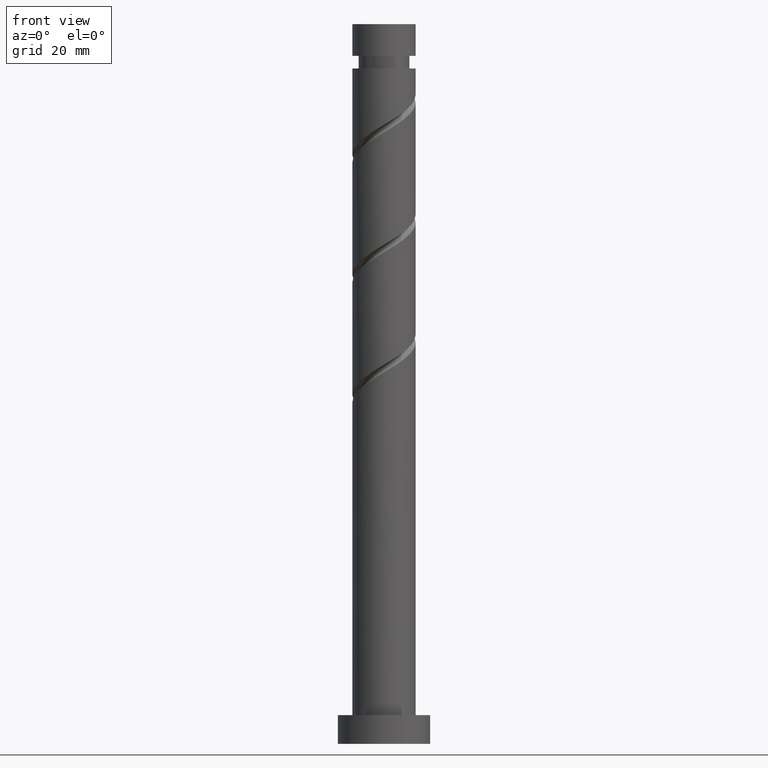
[diagram: clean part render]
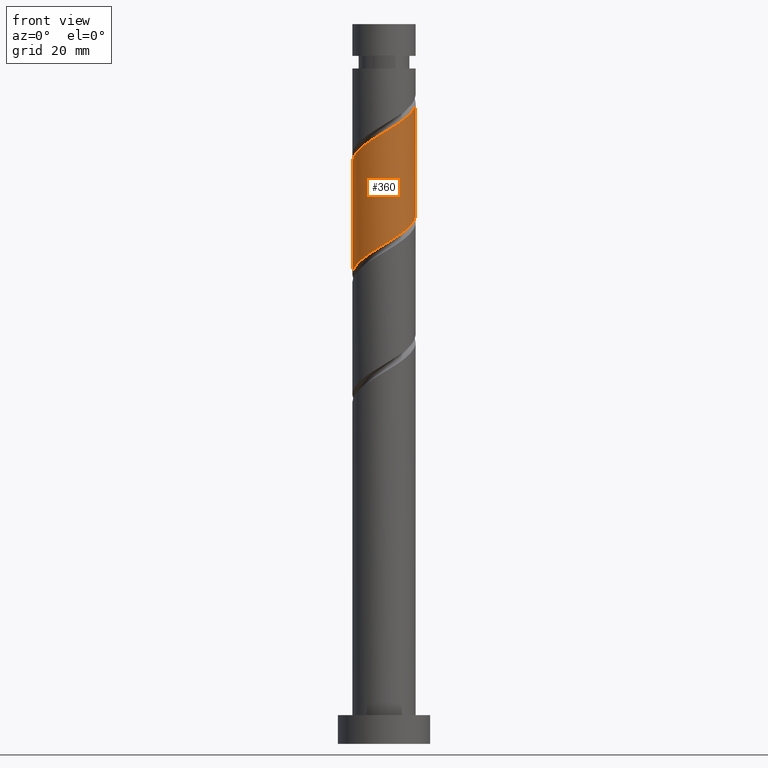
[diagram: same view with one face highlighted and labeled with its STEP entity id]
A machine part, front view. The second image highlights one B-rep face of the part: STEP entity #360.
In plain terms, the highlighted cylindrical surface (edge-blend (fillet) strip) has radius 5.5 mm, axis along (-0, -0, -1).
Its self-contained STEP definition (entity closure, byte-faithful):
#55 = LINE ( 'NONE', #297, #406 ) ;
#57 = ORIENTED_EDGE ( 'NONE', *, *, #204, .T. ) ;
#109 = CARTESIAN_POINT ( 'NONE',  ( 0.6246833854196917057, -5.464409452811948675, 87.07928583175919357 ) ) ;
#124 = CARTESIAN_POINT ( 'NONE',  ( -4.642379546774340504, -3.075248360626010591, 83.43345249842585076 ) ) ;
#131 = CARTESIAN_POINT ( 'NONE',  ( -1.094486180817284771, -5.389999999999999680, 86.03761916509255059 ) ) ;
#197 = CARTESIAN_POINT ( 'NONE',  ( -5.499999999999999112, -6.686923841309808376E-15, 81.49408827322945115 ) ) ;
#204 = EDGE_CURVE ( 'NONE', #611, #1142, #55, .T. ) ;
#205 = CARTESIAN_POINT ( 'NONE',  ( -3.075248360626016364, -4.642379546774346721, 104.2667858317591651 ) ) ;
#206 = CARTESIAN_POINT ( 'NONE',  ( 5.499999999999998224, 6.057213524415163597E-15, 91.91075493989612255 ) ) ;
#223 = CARTESIAN_POINT ( 'NONE',  ( -0.6246833854196944813, -5.464409452811954893, 105.8292858317591794 ) ) ;
#226 = ORIENTED_EDGE ( 'NONE', *, *, #1302, .F. ) ;
#230 = CARTESIAN_POINT ( 'NONE',  ( 5.389999999999999680, -1.094486180817284993, 91.24595249842587918 ) ) ;
#231 = CARTESIAN_POINT ( 'NONE',  ( 5.464409452811954893, -0.6246833854196948144, 111.0376191650925080 ) ) ;
#244 = CARTESIAN_POINT ( 'NONE',  ( 5.499999999999999112, -0.5527707983925728152, 91.57645036448828080 ) ) ;
#273 = DIRECTION ( 'NONE',  ( -0.000000000000000000, -0.000000000000000000, -1.000000000000000000 ) ) ;
#289 = CARTESIAN_POINT ( 'NONE',  ( 5.499999999999998224, 6.057213524415163597E-15, 91.91075493989612255 ) ) ;
#291 = VERTEX_POINT ( 'NONE', #289 ) ;
#297 = CARTESIAN_POINT ( 'NONE',  ( -5.500000000000000000, 0.000000000000000000, 125.0000000000000000 ) ) ;
#329 = CARTESIAN_POINT ( 'NONE',  ( 5.003924435603282816, -2.282704589466718836, 109.9959524984258223 ) ) ;
#360 = ADVANCED_FACE ( 'NONE', ( #1562 ), #1191, .T. ) ;
#367 = CARTESIAN_POINT ( 'NONE',  ( 5.216650418808310263, -1.948178314166534753, 90.72511916509252217 ) ) ;
#386 =( BOUNDED_CURVE ( )  B_SPLINE_CURVE ( 2, ( #206, #244, #230, #367, #672, #470, #1315, #702, #601, #1167, #109, #847, #131, #963, #954, #1065, #549, #124, #1211, #1559, #1093, #1083, #197 ),
 .UNSPECIFIED., .F., .T. ) 
 B_SPLINE_CURVE_WITH_KNOTS ( ( 3, 2, 2, 2, 2, 2, 2, 2, 2, 2, 2, 3 ),
 ( 0.5545322023138552492, 0.5625000000000000000, 0.5749999999999999556, 0.5875000000000000222, 0.5999999999999999778, 0.6125000000000000444, 0.6250000000000000000, 0.6374999999999999556, 0.6500000000000000222, 0.6624999999999999778, 0.6750000000000000444, 0.6795322023138552492 ),
 .UNSPECIFIED. ) 
 CURVE ( )  GEOMETRIC_REPRESENTATION_ITEM ( )  RATIONAL_B_SPLINE_CURVE ( ( 0.9039174447099320719, 0.9019565955404615920, 0.9090909090909098378, 0.8978984914501261239, 0.9090909090909098378, 0.8978984914501261239, 0.9090909090909098378, 0.8978984914501261239, 0.9090909090909098378, 0.8978984914501261239, 0.9090909090909098378, 0.8978984914501261239, 0.9090909090909098378, 0.8978984914501261239, 0.9090909090909098378, 0.8978984914501261239, 0.9090909090909098378, 0.8978984914501261239, 0.9090909090909098378, 0.8978984914501261239, 0.9090909090909098378, 0.9050328050005742586, 0.9039174447099320719 ) ) 
 REPRESENTATION_ITEM ( '' )  );
#388 = LINE ( 'NONE', #1364, #627 ) ;
#406 = VECTOR ( 'NONE', #1399, 1000.000000000000000 ) ;
#432 = CARTESIAN_POINT ( 'NONE',  ( -2.282704589466718836, -5.003924435603282816, 104.7876191650924937 ) ) ;
#454 = CARTESIAN_POINT ( 'NONE',  ( 1.094486180817283882, -5.390000000000004121, 106.8709524984258081 ) ) ;
#462 = CARTESIAN_POINT ( 'NONE',  ( -5.499999999999999112, -6.686923841309809165E-15, 81.49408827322945115 ) ) ;
#470 = CARTESIAN_POINT ( 'NONE',  ( 4.359309166891291554, -3.464861313717944480, 89.68345249842587918 ) ) ;
#549 = CARTESIAN_POINT ( 'NONE',  ( -4.053620430246144046, -3.717278763758652627, 83.95428583175922199 ) ) ;
#568 = ORIENTED_EDGE ( 'NONE', *, *, #1134, .F. ) ;
#569 = CARTESIAN_POINT ( 'NONE',  ( -4.359309166891299547, -3.464861313717948921, 103.2251191650925222 ) ) ;
#576 = DIRECTION ( 'NONE',  ( -0.000000000000000000, -0.000000000000000000, -1.000000000000000000 ) ) ;
#587 = EDGE_CURVE ( 'NONE', #1367, #291, #388, .T. ) ;
#595 = ORIENTED_EDGE ( 'NONE', *, *, #587, .F. ) ;
#601 = CARTESIAN_POINT ( 'NONE',  ( 2.282704589466713507, -5.003924435603279264, 88.12095249842585076 ) ) ;
#611 = VERTEX_POINT ( 'NONE', #1113 ) ;
#627 = VECTOR ( 'NONE', #273, 1000.000000000000000 ) ;
#672 = CARTESIAN_POINT ( 'NONE',  ( 4.787979792849804461, -2.706519813942239505, 90.20428583175917936 ) ) ;
#702 = CARTESIAN_POINT ( 'NONE',  ( 3.075248360626010591, -4.642379546774340504, 88.64178583175917936 ) ) ;
#805 = CARTESIAN_POINT ( 'NONE',  ( 5.365469324432222464, -1.490160818307421753, 110.5167858317591651 ) ) ;
#825 = CARTESIAN_POINT ( 'NONE',  ( -5.216650418808320033, -1.948178314166535863, 102.1834524984258366 ) ) ;
#847 = CARTESIAN_POINT ( 'NONE',  ( -0.2407940474680344278, -5.563349581191682880, 86.55845249842583655 ) ) ;
#909 = CARTESIAN_POINT ( 'NONE',  ( 4.053620430246147599, -3.717278763758657512, 108.9542858317591794 ) ) ;
#926 = CARTESIAN_POINT ( 'NONE',  ( -4.787979792849808902, -2.706519813942242170, 102.7042858317591509 ) ) ;
#939 = CARTESIAN_POINT ( 'NONE',  ( -3.717278763758657512, -4.053620430246147599, 103.7459524984258223 ) ) ;
#954 = CARTESIAN_POINT ( 'NONE',  ( -2.706519813942239505, -4.787979792849804461, 84.99595249842586497 ) ) ;
#963 = CARTESIAN_POINT ( 'NONE',  ( -1.948178314166534753, -5.216650418808310263, 85.51678583175917936 ) ) ;
#1065 = CARTESIAN_POINT ( 'NONE',  ( -3.464861313717944480, -4.359309166891293330, 84.47511916509249374 ) ) ;
#1067 = CARTESIAN_POINT ( 'NONE',  ( 1.948178314166534975, -5.216650418808320033, 107.3917858317591794 ) ) ;
#1083 = CARTESIAN_POINT ( 'NONE',  ( -5.499999999999999112, -0.3133555559553750092, 81.68359936243672337 ) ) ;
#1093 = CARTESIAN_POINT ( 'NONE',  ( -5.464409452811949564, -0.6246833854196919278, 81.87095249842587918 ) ) ;
#1113 = CARTESIAN_POINT ( 'NONE',  ( -5.500000000000005329, 3.298482612305267546E-15, 100.9978167236222646 ) ) ;
#1134 = EDGE_CURVE ( 'NONE', #291, #1142, #386, .T. ) ;
#1142 = VERTEX_POINT ( 'NONE', #462 ) ;
#1167 = CARTESIAN_POINT ( 'NONE',  ( 1.490160818307416868, -5.365469324432214471, 87.60011916509250796 ) ) ;
#1176 = CARTESIAN_POINT ( 'NONE',  ( 5.500000000000006217, -0.3133555559553699577, 111.2249723010816638 ) ) ;
#1178 = DIRECTION ( 'NONE',  ( -1.000000000000000000, 0.000000000000000000, 0.000000000000000000 ) ) ;
#1191 = CYLINDRICAL_SURFACE ( 'NONE', #1481, 5.500000000000000000 ) ;
#1211 = CARTESIAN_POINT ( 'NONE',  ( -5.003924435603279264, -2.282704589466713507, 82.91261916509253638 ) ) ;
#1267 = CARTESIAN_POINT ( 'NONE',  ( -5.500000000000005329, -0.5527707983925713719, 101.3321212990301206 ) ) ;
#1302 = EDGE_CURVE ( 'NONE', #611, #1367, #1478, .T. ) ;
#1307 = CARTESIAN_POINT ( 'NONE',  ( -1.490160818307421531, -5.365469324432220688, 105.3084524984258792 ) ) ;
#1315 = CARTESIAN_POINT ( 'NONE',  ( 3.717278763758652627, -4.053620430246144046, 89.16261916509256480 ) ) ;
#1316 = CARTESIAN_POINT ( 'NONE',  ( 5.500000000000005329, 3.598344667969382849E-15, 111.4144833902889218 ) ) ;
#1327 = EDGE_LOOP ( 'NONE', ( #595, #226, #57, #568 ) ) ;
#1353 = CARTESIAN_POINT ( 'NONE',  ( 5.500000000000005329, 3.598344667969382849E-15, 111.4144833902889502 ) ) ;
#1364 = CARTESIAN_POINT ( 'NONE',  ( 5.500000000000000000, 6.735557395310442023E-16, 125.0000000000000000 ) ) ;
#1367 = VERTEX_POINT ( 'NONE', #1353 ) ;
#1380 = CARTESIAN_POINT ( 'NONE',  ( -5.500000000000005329, 3.298482612305267546E-15, 100.9978167236222646 ) ) ;
#1399 = DIRECTION ( 'NONE',  ( -0.000000000000000000, -0.000000000000000000, -1.000000000000000000 ) ) ;
#1421 = CARTESIAN_POINT ( 'NONE',  ( 2.706519813942241726, -4.787979792849808902, 107.9126191650925080 ) ) ;
#1433 = CARTESIAN_POINT ( 'NONE',  ( -5.390000000000004121, -1.094486180817284104, 101.6626191650925080 ) ) ;
#1440 = CARTESIAN_POINT ( 'NONE',  ( 0.2407940474680323184, -5.563349581191688209, 106.3501191650925080 ) ) ;
#1443 = CARTESIAN_POINT ( 'NONE',  ( 0.000000000000000000, 0.000000000000000000, 125.0000000000000000 ) ) ;
#1478 =( BOUNDED_CURVE ( )  B_SPLINE_CURVE ( 2, ( #1380, #1267, #1433, #825, #926, #569, #939, #205, #432, #1307, #223, #1440, #454, #1067, #1421, #1531, #909, #1540, #329, #805, #231, #1176, #1316 ),
 .UNSPECIFIED., .F., .T. ) 
 B_SPLINE_CURVE_WITH_KNOTS ( ( 3, 2, 2, 2, 2, 2, 2, 2, 2, 2, 2, 3 ),
 ( 0.5545322023138552492, 0.5625000000000000000, 0.5749999999999999556, 0.5875000000000000222, 0.5999999999999999778, 0.6125000000000000444, 0.6250000000000000000, 0.6374999999999999556, 0.6500000000000000222, 0.6624999999999999778, 0.6750000000000000444, 0.6795322023138553602 ),
 .UNSPECIFIED. ) 
 CURVE ( )  GEOMETRIC_REPRESENTATION_ITEM ( )  RATIONAL_B_SPLINE_CURVE ( ( 0.9039174447099376231, 0.9019565955404669211, 0.9090909090909153889, 0.8978984914501313419, 0.9090909090909153889, 0.8978984914501313419, 0.9090909090909153889, 0.8978984914501313419, 0.9090909090909153889, 0.8978984914501313419, 0.9090909090909153889, 0.8978984914501313419, 0.9090909090909153889, 0.8978984914501313419, 0.9090909090909153889, 0.8978984914501313419, 0.9090909090909153889, 0.8978984914501313419, 0.9090909090909153889, 0.8978984914501313419, 0.9090909090909153889, 0.9050328050005795877, 0.9039174447099375120 ) ) 
 REPRESENTATION_ITEM ( '' )  );
#1481 = AXIS2_PLACEMENT_3D ( 'NONE', #1443, #576, #1178 ) ;
#1531 = CARTESIAN_POINT ( 'NONE',  ( 3.464861313717947588, -4.359309166891299547, 108.4334524984258508 ) ) ;
#1540 = CARTESIAN_POINT ( 'NONE',  ( 4.642379546774347610, -3.075248360626016364, 109.4751191650925222 ) ) ;
#1559 = CARTESIAN_POINT ( 'NONE',  ( -5.365469324432214471, -1.490160818307417978, 82.39178583175915094 ) ) ;
#1562 = FACE_OUTER_BOUND ( 'NONE', #1327, .T. ) ;